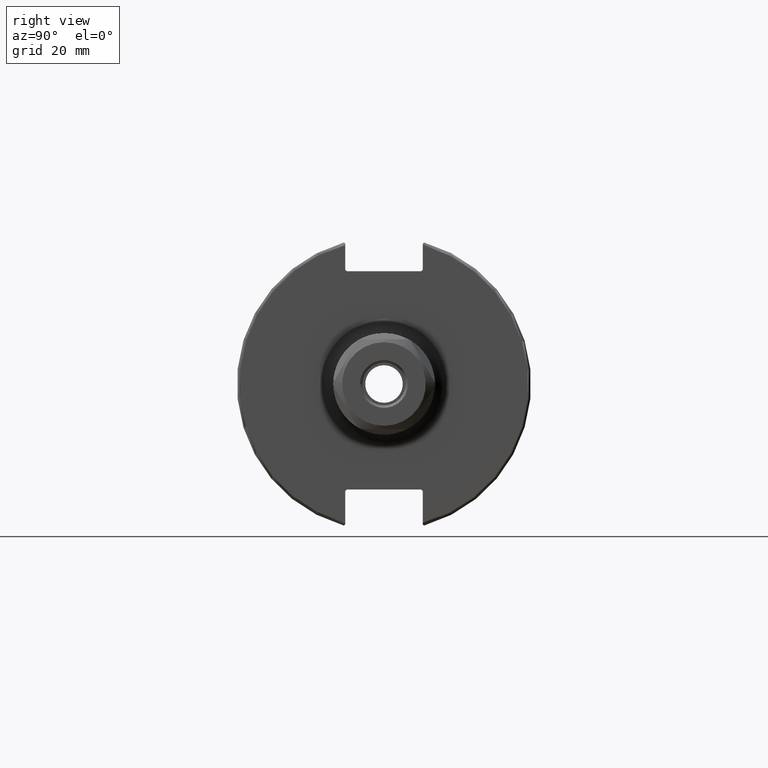
[diagram: clean part render]
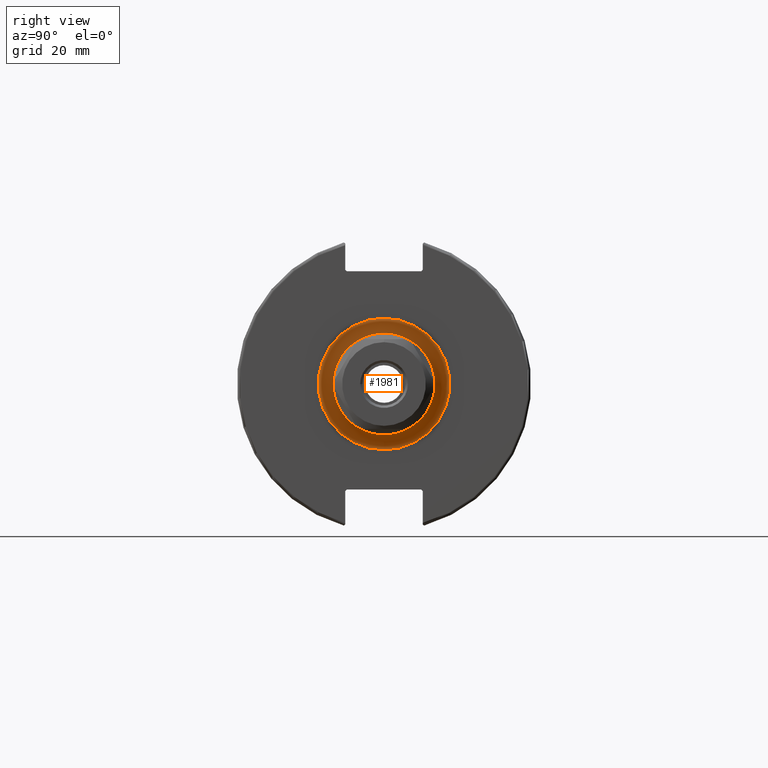
[diagram: same view with one face highlighted and labeled with its STEP entity id]
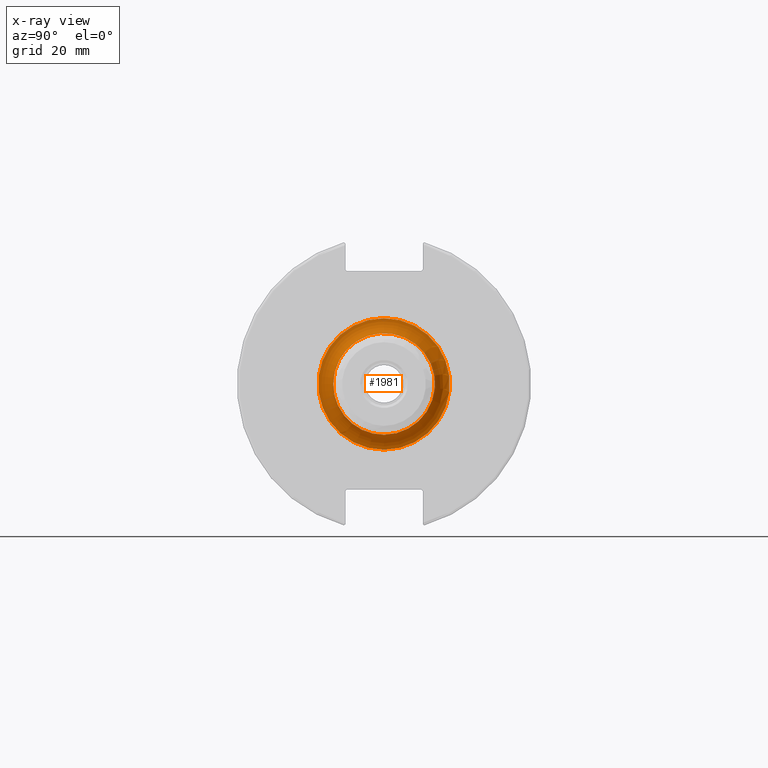
[diagram: x-ray of the same camera — body ghosted, the highlighted face saturated]
A machine part, right view. The second image highlights one B-rep face of the part: STEP entity #1981.
The next image is the same camera in x-ray: the body ghosted, the highlighted face saturated — about 1% of this face is hidden behind the body in this view.
In plain terms, the highlighted toroidal blend (fillet) surface has major radius 22 mm and minor (blend) radius 5 mm.
Its self-contained STEP definition (entity closure, byte-faithful):
#96=TOROIDAL_SURFACE('',#2194,22.,5.);
#268=FACE_OUTER_BOUND('',#389,.T.);
#389=EDGE_LOOP('',(#1412,#1413,#1414,#1415,#1416));
#773=CIRCLE('',#2184,17.);
#774=CIRCLE('',#2185,17.);
#780=CIRCLE('',#2195,5.);
#781=CIRCLE('',#2196,22.);
#883=VERTEX_POINT('',#3110);
#884=VERTEX_POINT('',#3112);
#888=VERTEX_POINT('',#3128);
#1087=EDGE_CURVE('',#884,#883,#773,.T.);
#1088=EDGE_CURVE('',#883,#884,#774,.T.);
#1095=EDGE_CURVE('',#884,#888,#780,.T.);
#1096=EDGE_CURVE('',#888,#888,#781,.T.);
#1412=ORIENTED_EDGE('',*,*,#1088,.T.);
#1413=ORIENTED_EDGE('',*,*,#1095,.T.);
#1414=ORIENTED_EDGE('',*,*,#1096,.T.);
#1415=ORIENTED_EDGE('',*,*,#1095,.F.);
#1416=ORIENTED_EDGE('',*,*,#1087,.T.);
#1981=ADVANCED_FACE('',(#268),#96,.F.);
#2184=AXIS2_PLACEMENT_3D('',#3113,#2449,#2450);
#2185=AXIS2_PLACEMENT_3D('',#3114,#2451,#2452);
#2194=AXIS2_PLACEMENT_3D('',#3127,#2470,#2471);
#2195=AXIS2_PLACEMENT_3D('',#3129,#2472,#2473);
#2196=AXIS2_PLACEMENT_3D('',#3130,#2474,#2475);
#2449=DIRECTION('center_axis',(-1.,0.,0.));
#2450=DIRECTION('ref_axis',(0.,-1.,-1.22464679914735E-16));
#2451=DIRECTION('center_axis',(-1.,0.,0.));
#2452=DIRECTION('ref_axis',(0.,-1.,-1.22464679914735E-16));
#2470=DIRECTION('center_axis',(-1.,0.,0.));
#2471=DIRECTION('ref_axis',(0.,0.,1.));
#2472=DIRECTION('center_axis',(0.,-1.,1.22464679914735E-16));
#2473=DIRECTION('ref_axis',(0.,-1.22464679914735E-16,-1.));
#2474=DIRECTION('center_axis',(1.,0.,0.));
#2475=DIRECTION('ref_axis',(0.,-1.,-1.22464679914735E-16));
#3110=CARTESIAN_POINT('',(24.05,-17.,-2.0818995585505E-15));
#3112=CARTESIAN_POINT('',(24.05,-2.0818995585505E-15,-17.));
#3113=CARTESIAN_POINT('Origin',(24.05,0.,0.));
#3114=CARTESIAN_POINT('Origin',(24.05,0.,0.));
#3127=CARTESIAN_POINT('Origin',(24.05,0.,0.));
#3128=CARTESIAN_POINT('',(19.05,-2.69422295812418E-15,-22.));
#3129=CARTESIAN_POINT('Origin',(24.05,-2.69422295812418E-15,-22.));
#3130=CARTESIAN_POINT('Origin',(19.05,0.,0.));